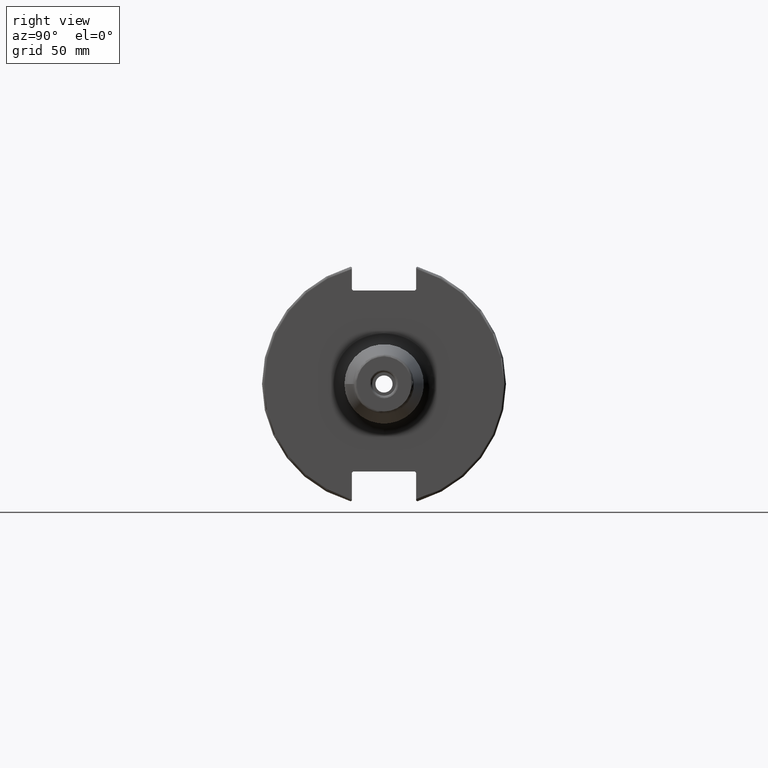
[diagram: clean part render]
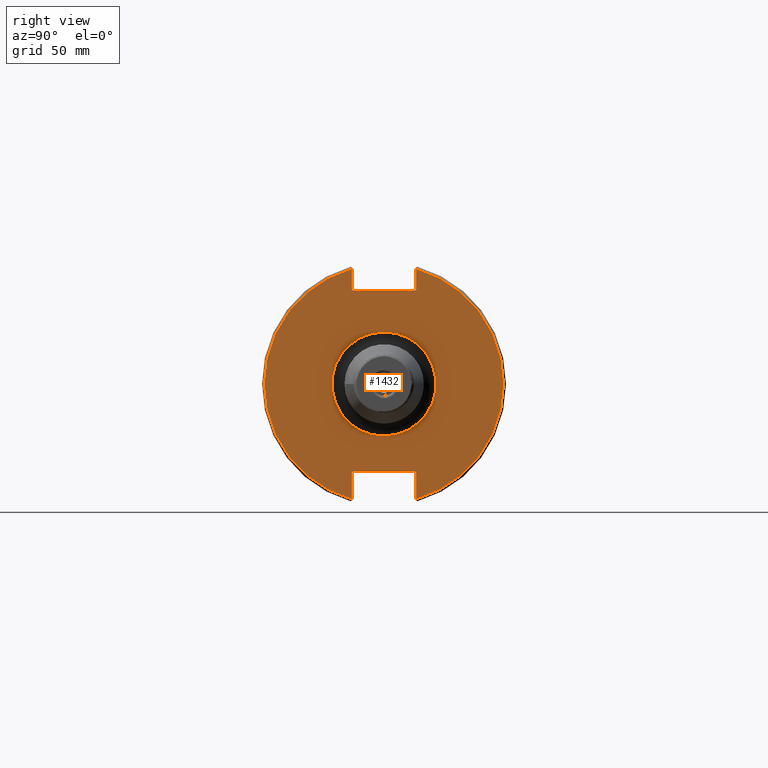
[diagram: same view with one face highlighted and labeled with its STEP entity id]
A machine part, right view. The second image highlights one B-rep face of the part: STEP entity #1432.
In plain terms, the highlighted planar face has unit normal (1, 0, 0).
Its self-contained STEP definition (entity closure, byte-faithful):
#86=LINE('',#2145,#176);
#87=LINE('',#2147,#177);
#88=LINE('',#2149,#178);
#89=LINE('',#2151,#179);
#90=LINE('',#2153,#180);
#91=LINE('',#2157,#181);
#92=LINE('',#2159,#182);
#93=LINE('',#2161,#183);
#94=LINE('',#2163,#184);
#95=LINE('',#2164,#185);
#176=VECTOR('',#1743,10.);
#177=VECTOR('',#1744,10.);
#178=VECTOR('',#1745,10.);
#179=VECTOR('',#1746,10.);
#180=VECTOR('',#1747,10.);
#181=VECTOR('',#1750,10.);
#182=VECTOR('',#1751,10.);
#183=VECTOR('',#1752,10.);
#184=VECTOR('',#1753,10.);
#185=VECTOR('',#1754,10.);
#290=FACE_BOUND('',#439,.T.);
#310=PLANE('',#1553);
#353=FACE_OUTER_BOUND('',#438,.T.);
#438=EDGE_LOOP('',(#1008,#1009,#1010,#1011,#1012,#1013,#1014,#1015,#1016,
#1017,#1018,#1019));
#439=EDGE_LOOP('',(#1020));
#546=CIRCLE('',#1550,21.);
#548=CIRCLE('',#1554,48.2125);
#549=CIRCLE('',#1555,48.2125);
#618=VERTEX_POINT('',#2134);
#619=VERTEX_POINT('',#2141);
#620=VERTEX_POINT('',#2142);
#621=VERTEX_POINT('',#2144);
#622=VERTEX_POINT('',#2146);
#623=VERTEX_POINT('',#2148);
#624=VERTEX_POINT('',#2150);
#625=VERTEX_POINT('',#2152);
#626=VERTEX_POINT('',#2154);
#627=VERTEX_POINT('',#2156);
#628=VERTEX_POINT('',#2158);
#629=VERTEX_POINT('',#2160);
#630=VERTEX_POINT('',#2162);
#770=EDGE_CURVE('',#618,#618,#546,.T.);
#773=EDGE_CURVE('',#619,#620,#548,.T.);
#774=EDGE_CURVE('',#619,#621,#86,.T.);
#775=EDGE_CURVE('',#622,#621,#87,.T.);
#776=EDGE_CURVE('',#622,#623,#88,.T.);
#777=EDGE_CURVE('',#624,#623,#89,.T.);
#778=EDGE_CURVE('',#624,#625,#90,.T.);
#779=EDGE_CURVE('',#626,#625,#549,.T.);
#780=EDGE_CURVE('',#626,#627,#91,.T.);
#781=EDGE_CURVE('',#628,#627,#92,.T.);
#782=EDGE_CURVE('',#628,#629,#93,.T.);
#783=EDGE_CURVE('',#630,#629,#94,.T.);
#784=EDGE_CURVE('',#630,#620,#95,.T.);
#1008=ORIENTED_EDGE('',*,*,#773,.F.);
#1009=ORIENTED_EDGE('',*,*,#774,.T.);
#1010=ORIENTED_EDGE('',*,*,#775,.F.);
#1011=ORIENTED_EDGE('',*,*,#776,.T.);
#1012=ORIENTED_EDGE('',*,*,#777,.F.);
#1013=ORIENTED_EDGE('',*,*,#778,.T.);
#1014=ORIENTED_EDGE('',*,*,#779,.F.);
#1015=ORIENTED_EDGE('',*,*,#780,.T.);
#1016=ORIENTED_EDGE('',*,*,#781,.F.);
#1017=ORIENTED_EDGE('',*,*,#782,.T.);
#1018=ORIENTED_EDGE('',*,*,#783,.F.);
#1019=ORIENTED_EDGE('',*,*,#784,.T.);
#1020=ORIENTED_EDGE('',*,*,#770,.F.);
#1432=ADVANCED_FACE('',(#353,#290),#310,.T.);
#1550=AXIS2_PLACEMENT_3D('',#2136,#1732,#1733);
#1553=AXIS2_PLACEMENT_3D('',#2140,#1739,#1740);
#1554=AXIS2_PLACEMENT_3D('',#2143,#1741,#1742);
#1555=AXIS2_PLACEMENT_3D('',#2155,#1748,#1749);
#1732=DIRECTION('center_axis',(1.,0.,0.));
#1733=DIRECTION('ref_axis',(0.,-1.,-1.22464679914735E-16));
#1739=DIRECTION('center_axis',(1.,0.,0.));
#1740=DIRECTION('ref_axis',(0.,0.,-1.));
#1741=DIRECTION('center_axis',(-1.,0.,0.));
#1742=DIRECTION('ref_axis',(0.,1.,-6.12323399573677E-17));
#1743=DIRECTION('',(0.,0.,-1.));
#1744=DIRECTION('',(0.,0.707106781186549,0.707106781186546));
#1745=DIRECTION('',(0.,-1.,0.));
#1746=DIRECTION('',(0.,0.707106781186549,-0.707106781186546));
#1747=DIRECTION('',(0.,0.,1.));
#1748=DIRECTION('center_axis',(-1.,0.,0.));
#1749=DIRECTION('ref_axis',(0.,-1.,1.60812264967664E-16));
#1750=DIRECTION('',(0.,0.,1.));
#1751=DIRECTION('',(0.,-0.707106781186549,-0.707106781186546));
#1752=DIRECTION('',(0.,1.,0.));
#1753=DIRECTION('',(0.,-0.707106781186549,0.707106781186546));
#1754=DIRECTION('',(0.,0.,-1.));
#2134=CARTESIAN_POINT('',(19.05,-2.57175827820944E-15,-21.));
#2136=CARTESIAN_POINT('Origin',(19.05,0.,0.));
#2140=CARTESIAN_POINT('Origin',(19.05,0.,0.));
#2141=CARTESIAN_POINT('',(19.05,12.95,46.4407434937254));
#2142=CARTESIAN_POINT('',(19.05,12.95,-46.4407434937254));
#2143=CARTESIAN_POINT('Origin',(19.05,0.,0.));
#2144=CARTESIAN_POINT('',(19.05,12.95,38.219));
#2145=CARTESIAN_POINT('',(19.05,12.95,18.8595));
#2146=CARTESIAN_POINT('',(19.05,12.45,37.719));
#2147=CARTESIAN_POINT('',(19.05,0.0327499999999836,25.30175));
#2148=CARTESIAN_POINT('',(19.05,-12.45,37.719));
#2149=CARTESIAN_POINT('',(19.05,0.,37.719));
#2150=CARTESIAN_POINT('',(19.05,-12.95,38.219));
#2151=CARTESIAN_POINT('',(19.05,-0.0327499999999817,25.30175));
#2152=CARTESIAN_POINT('',(19.05,-12.95,46.4407434937254));
#2153=CARTESIAN_POINT('',(19.05,-12.95,18.8595));
#2154=CARTESIAN_POINT('',(19.05,-12.95,-46.4407434937254));
#2155=CARTESIAN_POINT('Origin',(19.05,0.,0.));
#2156=CARTESIAN_POINT('',(19.05,-12.95,-35.806));
#2157=CARTESIAN_POINT('',(19.05,-12.95,-17.653));
#2158=CARTESIAN_POINT('',(19.05,-12.45,-35.306));
#2159=CARTESIAN_POINT('',(19.05,-0.635999999999989,-23.492));
#2160=CARTESIAN_POINT('',(19.05,12.45,-35.306));
#2161=CARTESIAN_POINT('',(19.05,-3.33066907387547E-15,-35.306));
#2162=CARTESIAN_POINT('',(19.05,12.95,-35.806));
#2163=CARTESIAN_POINT('',(19.05,0.635999999999982,-23.492));
#2164=CARTESIAN_POINT('',(19.05,12.95,-17.653));